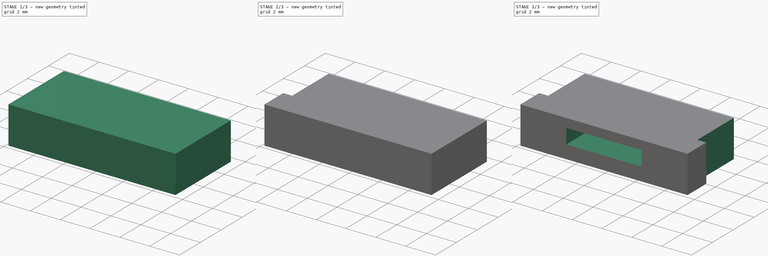
[diagram: build sequence overview — one tinted view per stage of 3, left to right]
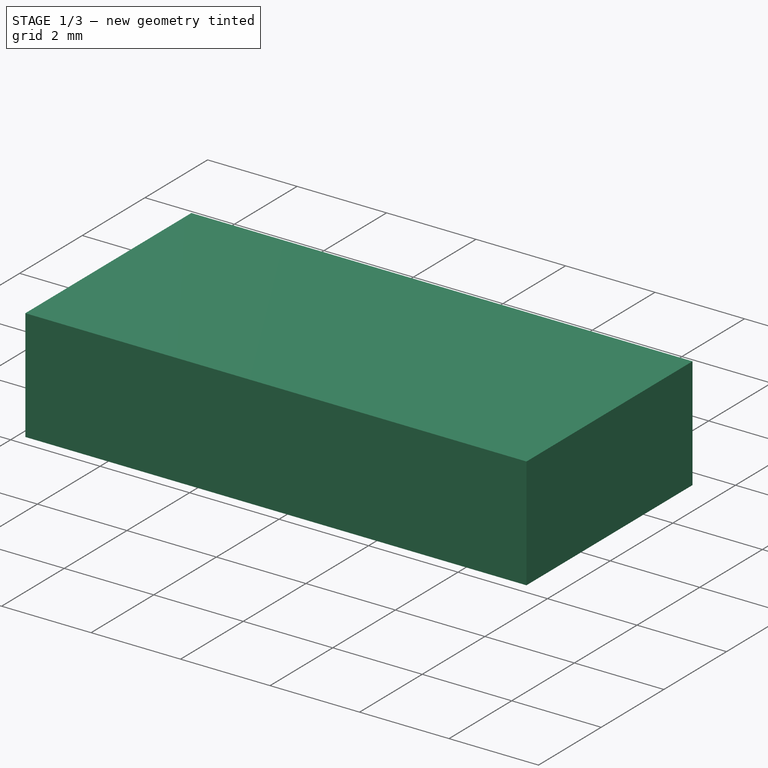
[diagram: stage 1 of 3 — iso view after this stage's code; geometry added in this stage tinted green]
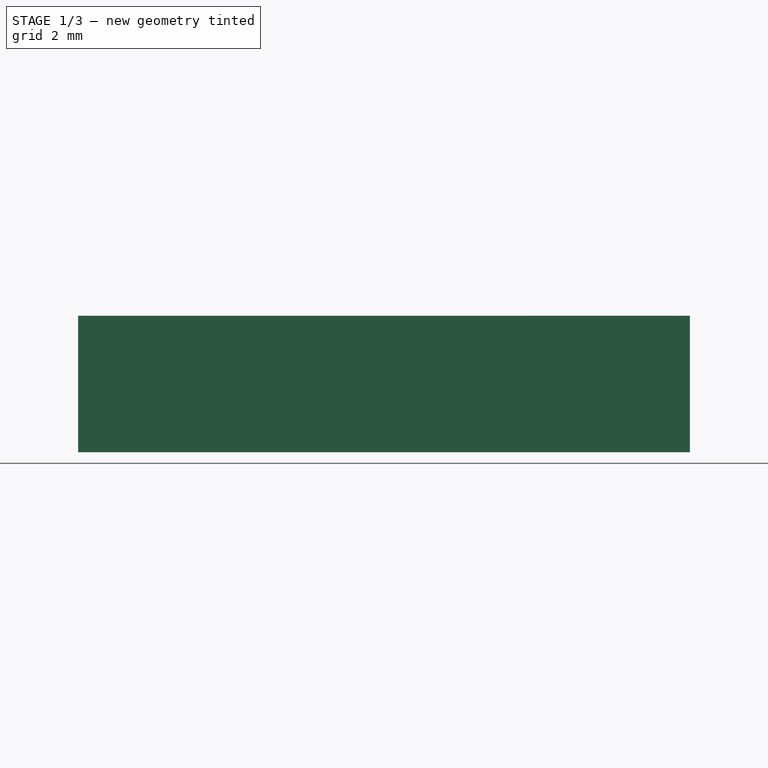
[diagram: stage 1 of 3 — front view after this stage's code; geometry added in this stage tinted green]
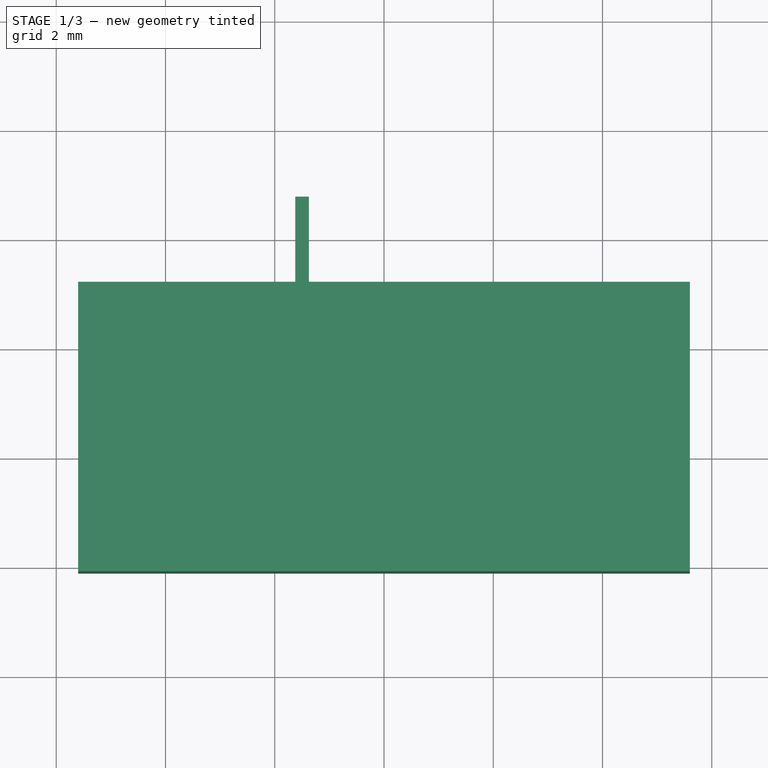
[diagram: stage 1 of 3 — top view after this stage's code; geometry added in this stage tinted green]
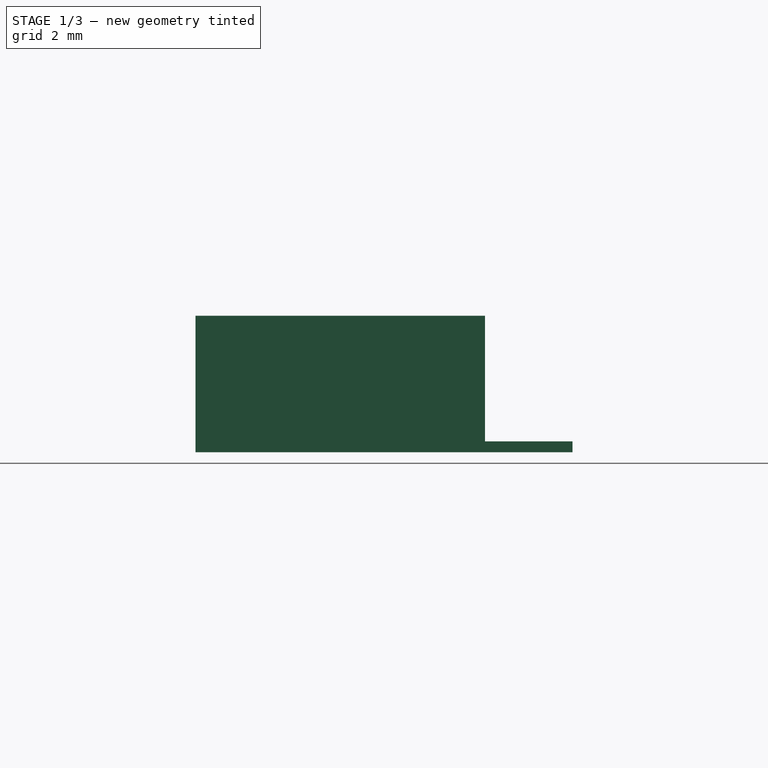
[diagram: stage 1 of 3 — right view after this stage's code; geometry added in this stage tinted green]
FCSTD DOCUMENT  (FreeCAD 1.0R39109 (Git))
Label: DS1020-07
License: All rights reserved
LicenseURL: http://en.wikipedia.org/wiki/All_rights_reserved
objects: Sketcher::SketchObject×4, PartDesign::Pad×2, PartDesign::Pocket×2, Spreadsheet::Sheet×1, PartDesign::LinearPattern×1, PartDesign::Mirrored×1, PartDesign::Body×1
note: 25 computed .brp shape members not serialized (recipe doc carries the construction recipe); baked Part::Feature solids carry a one-line shape summary decoded from their .brp

FEATURE [Spreadsheet::Sheet] Spreadsheet  label="dimensions"
  cells = A1='pins; B1(pinCount)=4
FEATURE [Sketcher::SketchObject] Sketch
  ArcFitTolerance = 1e-06
  AttachmentSupport = -> [XY_Plane]
  FullyConstrained = true
  MakeInternals = false
  MapMode = 5
  expr: Constraints[9] = 1 * <<dimensions>>.pinCount + 7.2
  sketch-geometry (4):
    g0: LineSegment StartX=-5.6 StartY=-0.8 StartZ=0 EndX=-5.6 EndY=-6.1 EndZ=0
    g1: LineSegment StartX=-5.6 StartY=-6.1 StartZ=0 EndX=5.6 EndY=-6.1 EndZ=0
    g2: LineSegment StartX=5.6 StartY=-6.1 StartZ=0 EndX=5.6 EndY=-0.8 EndZ=0
    g3: LineSegment StartX=5.6 StartY=-0.8 StartZ=0 EndX=-5.6 EndY=-0.8 EndZ=0
  constraints (11):
    c: Coincident(g0,g1)
    c: Coincident(g1,g2)
    c: Coincident(g2,g3)
    c: Coincident(g3,g0)
    c: Vertical(g0)
    c: Vertical(g2)
    c: Horizontal(g1)
    c: Symmetric(g0,g2,g-2)
    c: DistanceY(g2,g2) = 5.3
    c: DistanceX(g3,g3) = 11.2
    c: DistanceY(g0,g-1) = 0.8
FEATURE [PartDesign::Pad] Pad  label="main"
  Direction = (0,0,1)
  Length = 2.5
  Length2 = 10
  Profile = -> Sketch
  ReferenceAxis = -> Sketch [N_Axis]
  Suppressed = false
  Type = 0
FEATURE [Sketcher::SketchObject] Sketch001
  ArcFitTolerance = 1e-06
  AttachmentSupport = -> [XY_Plane]
  FullyConstrained = true
  MakeInternals = false
  MapMode = 5
  expr: Constraints[11] = (<<dimensions>>.pinCount - 1) * 1 / 2
  sketch-geometry (5):
    g0: LineSegment StartX=-1.625 StartY=0.8 StartZ=0 EndX=-1.625 EndY=-0.8 EndZ=0
    g1: LineSegment StartX=-1.625 StartY=-0.8 StartZ=0 EndX=-1.375 EndY=-0.8 EndZ=0
    g2: LineSegment StartX=-1.375 StartY=-0.8 StartZ=0 EndX=-1.375 EndY=0.8 EndZ=0
    g3: LineSegment StartX=-1.375 StartY=0.8 StartZ=0 EndX=-1.625 EndY=0.8 EndZ=0
    g4: GeomPoint X=-1.5 Y=0.8 Z=0
  constraints (13):
    c: Coincident(g0,g1)
    c: Coincident(g1,g2)
    c: Coincident(g2,g3)
    c: Coincident(g3,g0)
    c: Vertical(g0)
    c: Vertical(g2)
    c: Horizontal(g1)
    c: Horizontal(g3)
    c: DistanceY(g1,g-1) = 0.8
    c: Symmetric(g3,g3,g4)
    c: DistanceX(g3,g3) = 0.25
    c: DistanceX(g4,g-1) = 1.5
    c: DistanceY(g0,g0) = 1.6
FEATURE [PartDesign::Pad] Pad001  label="terminal"
  BaseFeature = -> Pad
  Direction = (0,0,1)
  Length = 0.2
  Length2 = 10
  Profile = -> Sketch001
  ReferenceAxis = -> Sketch001 [N_Axis]
  Suppressed = false
  Type = 0
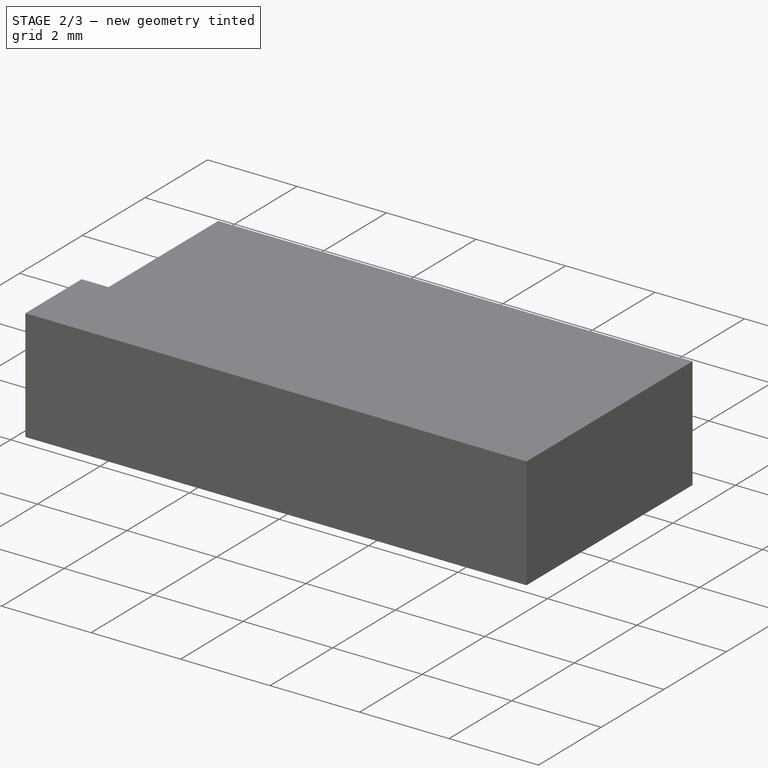
[diagram: stage 2 of 3 — iso view after this stage's code; geometry added in this stage tinted green]
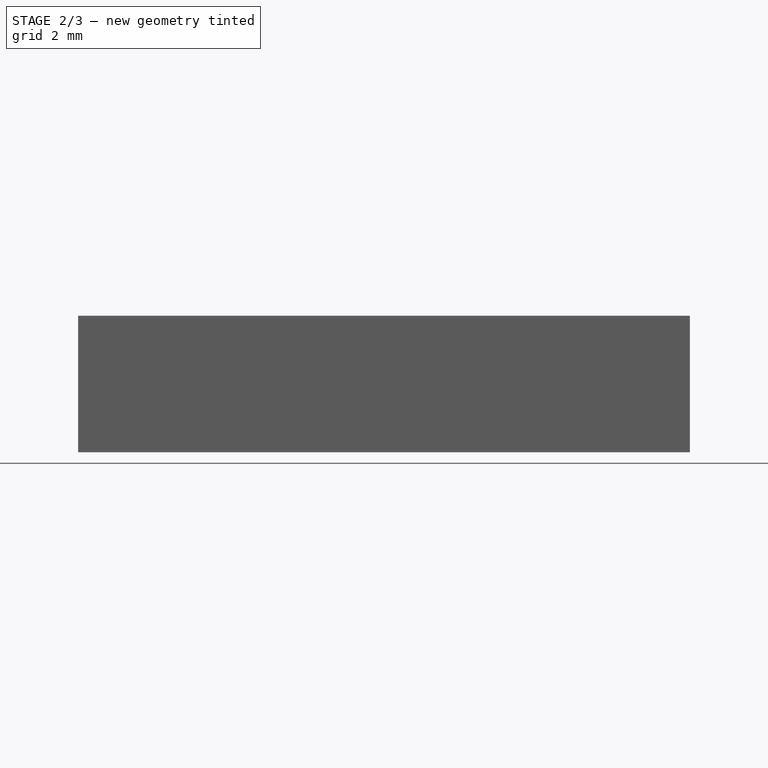
[diagram: stage 2 of 3 — front view after this stage's code; geometry added in this stage tinted green]
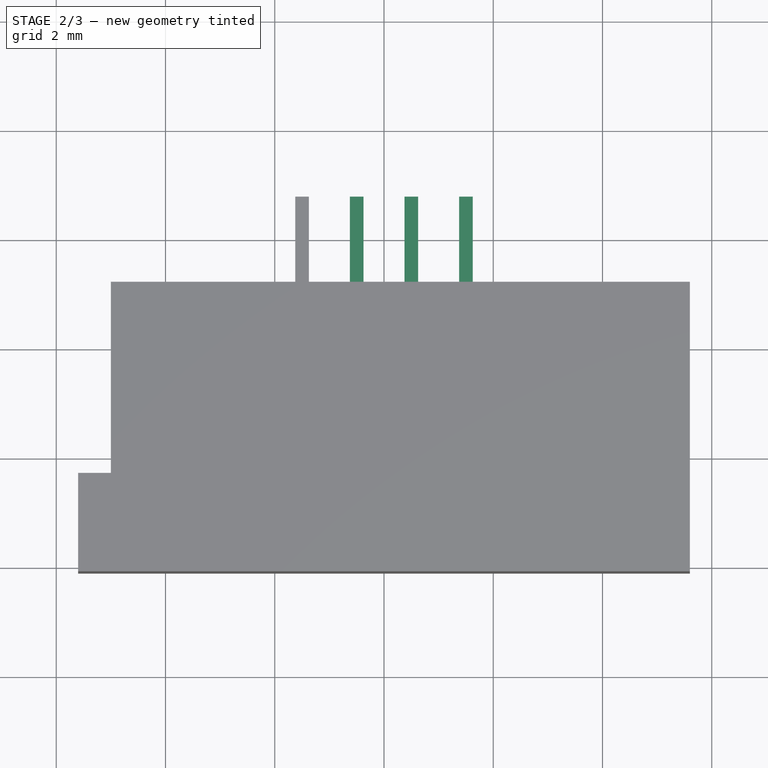
[diagram: stage 2 of 3 — top view after this stage's code; geometry added in this stage tinted green]
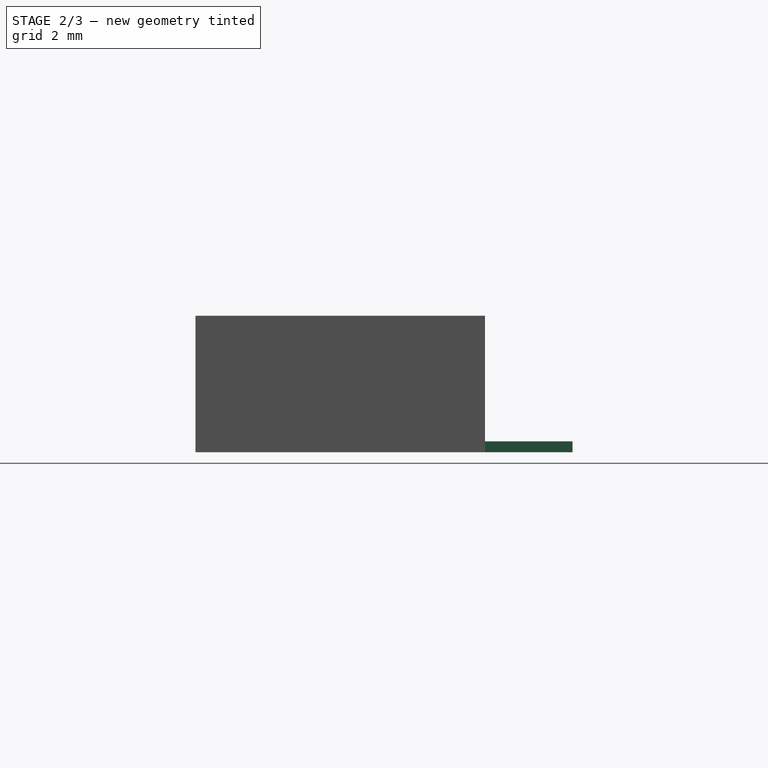
[diagram: stage 2 of 3 — right view after this stage's code; geometry added in this stage tinted green]
FEATURE [PartDesign::LinearPattern] LinearPattern  label="terminal pattern"
  BaseFeature = -> Pad001
  Direction = -> Sketch001 [H_Axis]
  Length = 3
  Mode = 0
  Occurrences = 4
  Offset = 1
  Originals = -> [Pad001]
  Suppressed = false
  TransformMode = 0
  expr: Length = <<dimensions>>.pinCount - 1
  expr: Occurrences = <<dimensions>>.pinCount
FEATURE [Sketcher::SketchObject] Sketch002
  ArcFitTolerance = 1e-06
  AttachmentSupport = -> [XY_Plane]
  FullyConstrained = true
  MakeInternals = false
  MapMode = 5
  expr: Constraints[10] = (1 * <<dimensions>>.pinCount + 6) / 2
  expr: Constraints[8] = (1 * <<dimensions>>.pinCount + 7.2) / 2
  sketch-geometry (4):
    g0: LineSegment StartX=-5.6 StartY=-0.8 StartZ=0 EndX=-5.6 EndY=-4.3 EndZ=0
    g1: LineSegment StartX=-5.6 StartY=-4.3 StartZ=0 EndX=-5 EndY=-4.3 EndZ=0
    g2: LineSegment StartX=-5 StartY=-4.3 StartZ=0 EndX=-5 EndY=-0.8 EndZ=0
    g3: LineSegment StartX=-5 StartY=-0.8 StartZ=0 EndX=-5.6 EndY=-0.8 EndZ=0
  constraints (12):
    c: Coincident(g0,g1)
    c: Coincident(g1,g2)
    c: Coincident(g2,g3)
    c: Coincident(g3,g0)
    c: Vertical(g0)
    c: Vertical(g2)
    c: Horizontal(g1)
    c: Horizontal(g3)
    c: DistanceX(g0,g-1) = 5.6
    c: DistanceY(g2,g-1) = 0.8
    c: DistanceX(g2,g-1) = 5
    c: DistanceY(g2,g2) = 3.5
FEATURE [PartDesign::Pocket] Pocket  label="side cut"
  BaseFeature = -> LinearPattern
  Direction = (0,0,-1)
  Length = 5
  Length2 = 5
  Profile = -> Sketch002
  ReferenceAxis = -> Sketch002 [N_Axis]
  Reversed = true
  Suppressed = false
  Type = 1
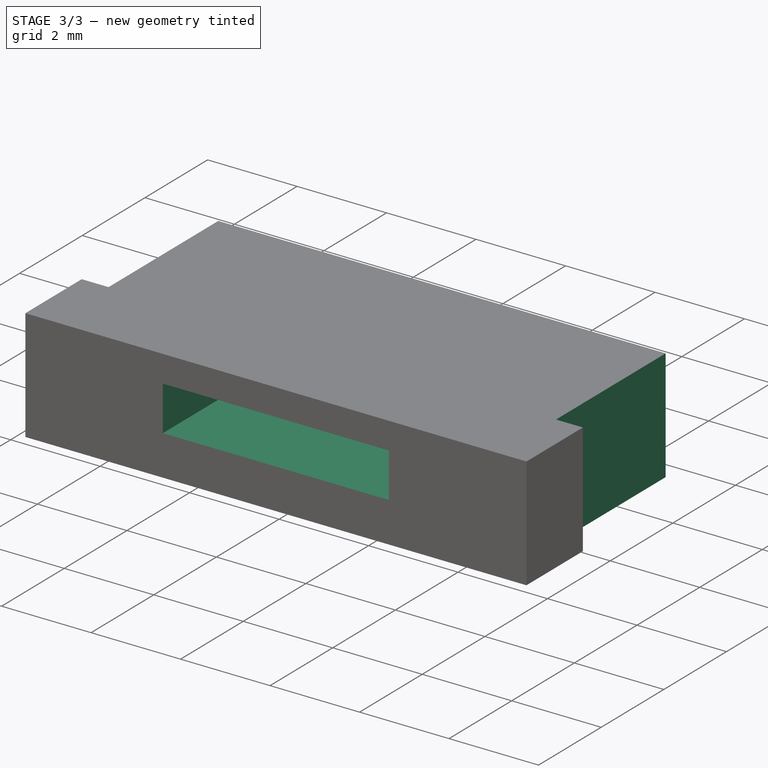
[diagram: stage 3 of 3 — iso view after this stage's code; geometry added in this stage tinted green]
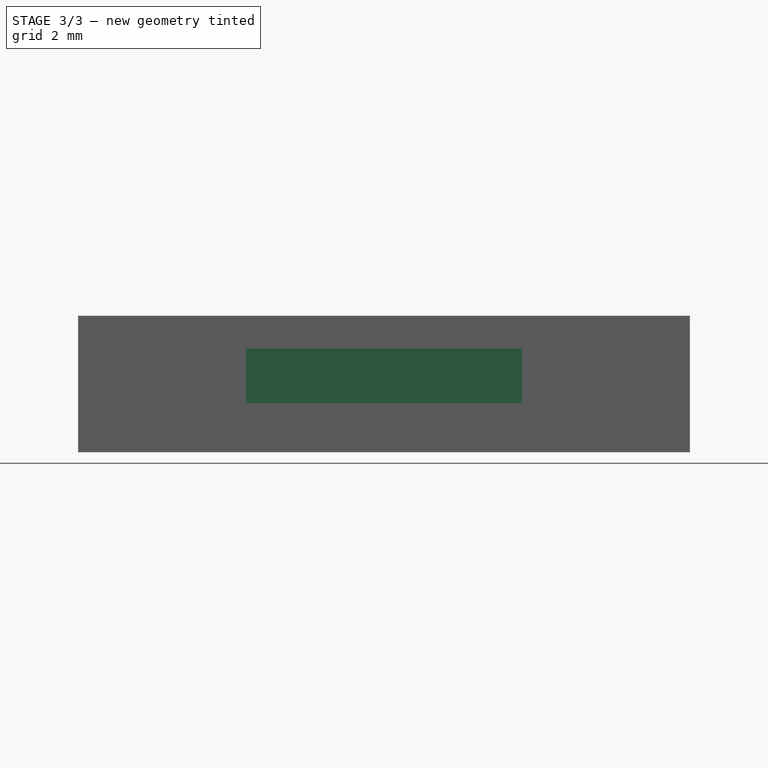
[diagram: stage 3 of 3 — front view after this stage's code; geometry added in this stage tinted green]
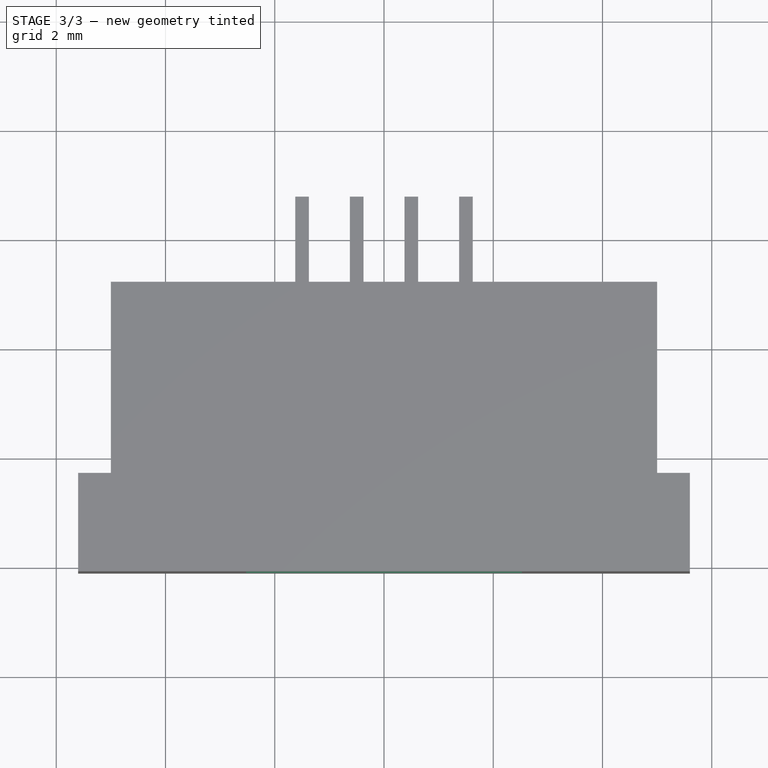
[diagram: stage 3 of 3 — top view after this stage's code; geometry added in this stage tinted green]
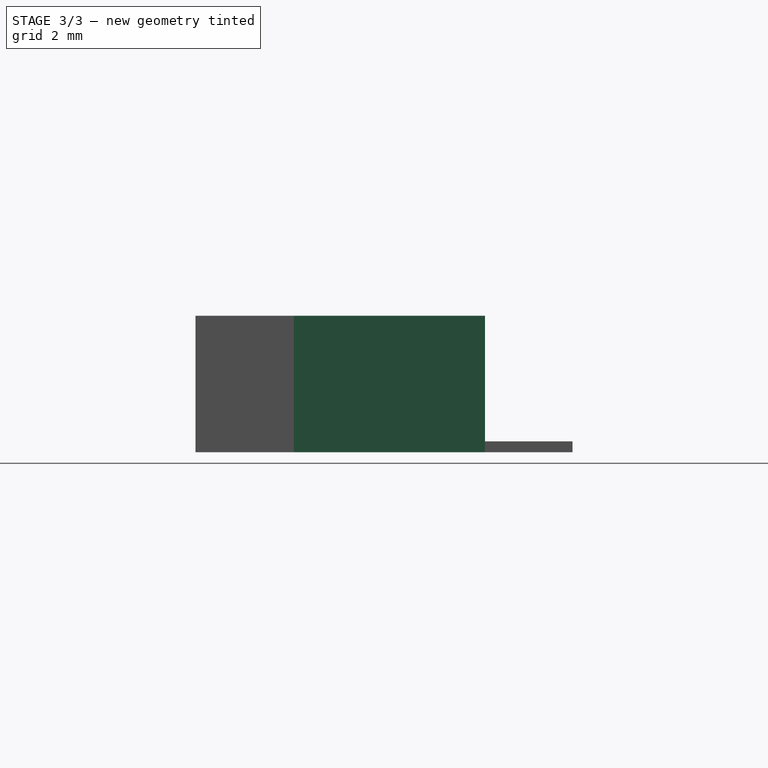
[diagram: stage 3 of 3 — right view after this stage's code; geometry added in this stage tinted green]
FEATURE [PartDesign::Mirrored] Mirrored  label="side cut mirror"
  BaseFeature = -> Pocket
  MirrorPlane = -> YZ_Plane
  Originals = -> [Pocket]
  Suppressed = false
  TransformMode = 0
FEATURE [Sketcher::SketchObject] Sketch003
  ArcFitTolerance = 1e-06
  AttachmentSupport = -> [Mirrored]
  FullyConstrained = true
  MakeInternals = false
  MapMode = 5
  Placement = pos=(0,-6.1,0) rot=(1,0,0;1.5708rad)
  expr: Constraints[8] = 1 * <<dimensions>>.pinCount + 1.05
  sketch-geometry (4):
    g0: LineSegment StartX=-2.525 StartY=1.9 StartZ=0 EndX=-2.525 EndY=0.9 EndZ=0
    g1: LineSegment StartX=-2.525 StartY=0.9 StartZ=0 EndX=2.525 EndY=0.9 EndZ=0
    g2: LineSegment StartX=2.525 StartY=0.9 StartZ=0 EndX=2.525 EndY=1.9 EndZ=0
    g3: LineSegment StartX=2.525 StartY=1.9 StartZ=0 EndX=-2.525 EndY=1.9 EndZ=0
  constraints (11):
    c: Coincident(g0,g1)
    c: Coincident(g1,g2)
    c: Coincident(g2,g3)
    c: Coincident(g3,g0)
    c: Vertical(g0)
    c: Vertical(g2)
    c: Horizontal(g1)
    c: Symmetric(g2,g0,g-2)
    c: DistanceX(g3,g3) = 5.05
    c: DistanceY(g0,g0) = 1
    c: DistanceY(g-1,g0) = 0.9
FEATURE [PartDesign::Pocket] Pocket001  label="tape pocket"
  BaseFeature = -> Mirrored
  Direction = (0,1,-2e-16)
  Length = 3
  Length2 = 5
  Profile = -> Sketch003
  ReferenceAxis = -> Sketch003 [N_Axis]
  Suppressed = false
  Type = 0
FEATURE [PartDesign::Body] Body
  AllowCompound = false
  Group = -> [Sketch,Pad,Sketch001,Pad001,LinearPattern,Sketch002,Pocket,Mirrored,Sketch003,Pocket001]
  Origin = -> Origin
  Tip = -> Pocket001
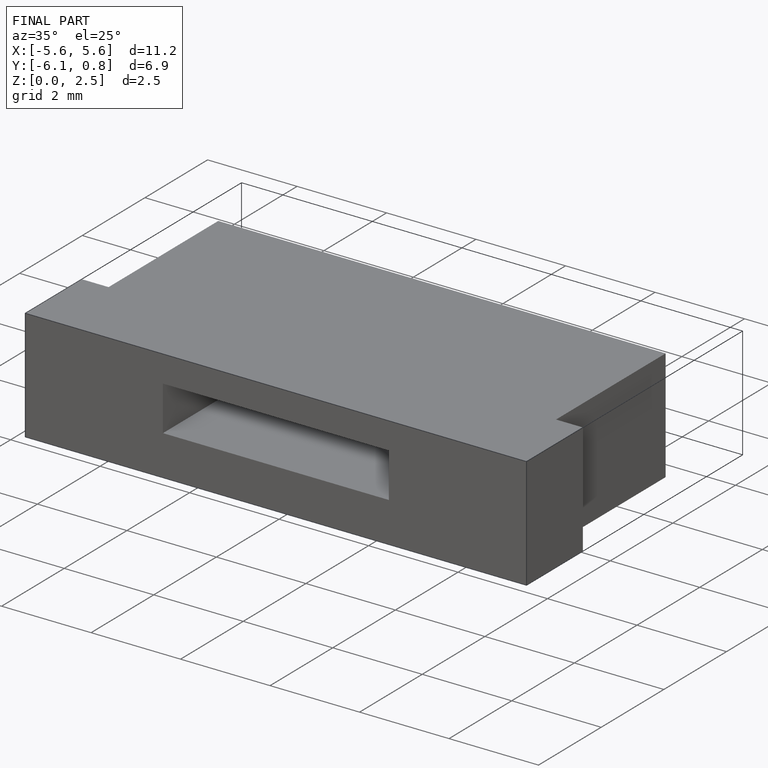
[diagram: finished part — iso view with bounding-box wireframe]
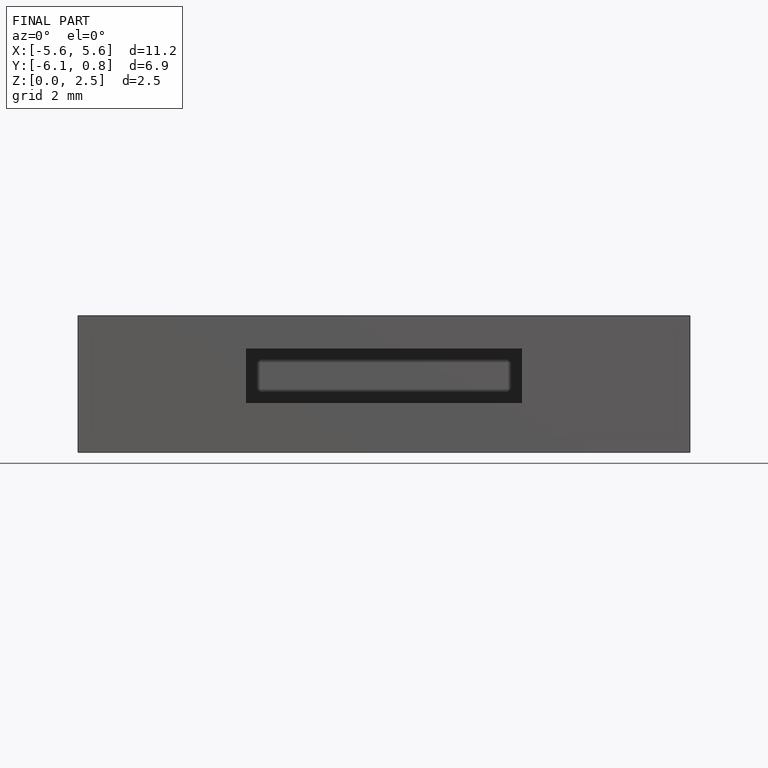
[diagram: finished part — front view with bounding-box wireframe]
